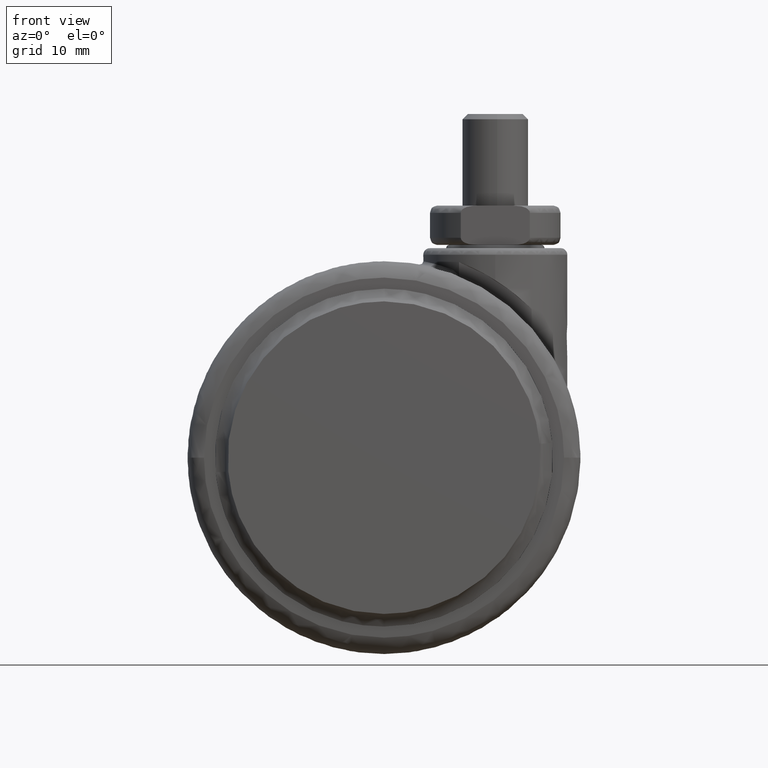
[diagram: clean part render]
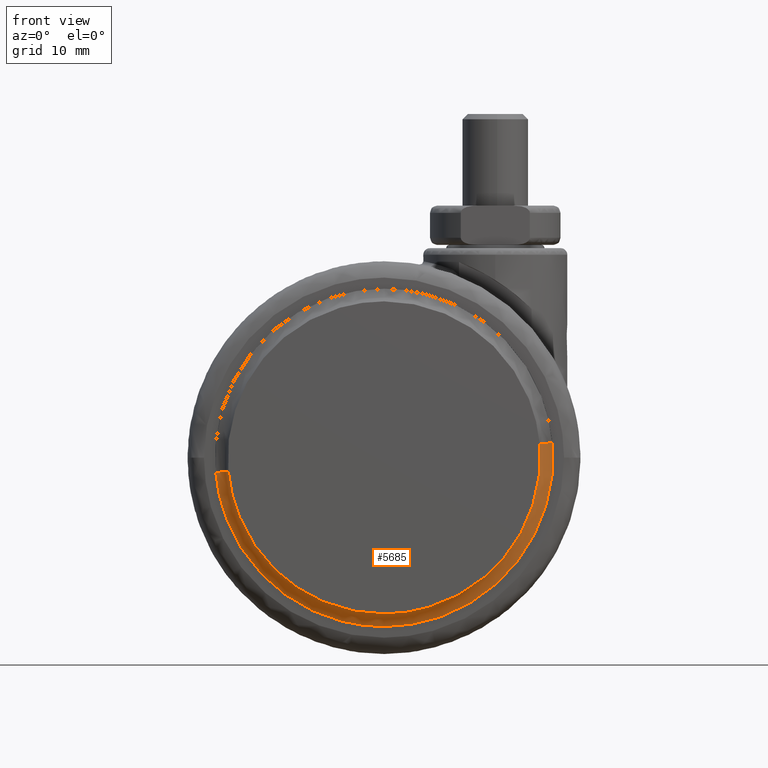
[diagram: same view with one face highlighted and labeled with its STEP entity id]
A machine part, front view. The second image highlights one B-rep face of the part: STEP entity #5685.
In plain terms, the highlighted face is a freeform B-spline surface patch.
Its self-contained STEP definition (entity closure, byte-faithful):
#5429=CARTESIAN_POINT('',(-23.783222111210389,-22.799999999489390,-2.097494252924088));
#5430=VERTEX_POINT('',#5429);
#5448=CARTESIAN_POINT('',(0.0,-22.800000000000001,-23.875534258511252));
#5449=VERTEX_POINT('',#5448);
#5450=CARTESIAN_POINT('',(0.0,-22.800000000000001,-23.875534258511252));
#5451=CARTESIAN_POINT('',(-21.862569243453571,-22.799999999744692,-23.875534258513881));
#5452=CARTESIAN_POINT('',(-23.783222111210392,-22.799999999489398,-2.097494252924089));
#5460=(BOUNDED_CURVE()B_SPLINE_CURVE(2,(#5450,#5451,#5452),.UNSPECIFIED.,.F.,.U.)B_SPLINE_CURVE_WITH_KNOTS((3,3),(0.500000000000000,0.734718454855897),.UNSPECIFIED.)CURVE()GEOMETRIC_REPRESENTATION_ITEM()RATIONAL_B_SPLINE_CURVE((1.0,0.725010224969346,0.966381850709618))REPRESENTATION_ITEM(''));
#5461=EDGE_CURVE('',#5449,#5430,#5460,.T.);
#5463=CARTESIAN_POINT('',(23.783222111210389,-22.799999999489390,2.097494252924087));
#5464=VERTEX_POINT('',#5463);
#5465=CARTESIAN_POINT('',(23.783222111210392,-22.799999999489398,2.097494252924088));
#5466=CARTESIAN_POINT('',(23.875534258569946,-22.799999999499676,1.050778486631239));
#5467=CARTESIAN_POINT('',(23.875534258568631,-22.799999999510920,5.060183E-012));
#5468=CARTESIAN_POINT('',(23.875534258538682,-22.799999999766211,-23.875534258508829));
#5469=CARTESIAN_POINT('',(0.0,-22.800000000000001,-23.875534258511252));
#5477=(BOUNDED_CURVE()B_SPLINE_CURVE(2,(#5465,#5466,#5467,#5468,#5469),.UNSPECIFIED.,.F.,.U.)B_SPLINE_CURVE_WITH_KNOTS((3,2,3),(0.234718454855897,0.250000000000000,0.500000000000000),.UNSPECIFIED.)CURVE()GEOMETRIC_REPRESENTATION_ITEM()RATIONAL_B_SPLINE_CURVE((0.966381850709618,0.982096556217202,1.0,0.707106781186547,1.0))REPRESENTATION_ITEM(''));
#5478=EDGE_CURVE('',#5464,#5449,#5477,.T.);
#5525=CARTESIAN_POINT('',(-25.704905294196660,-21.002230012307500,-2.266971685981109));
#5526=VERTEX_POINT('',#5525);
#5544=CARTESIAN_POINT('',(-25.704905294196664,-21.002230012307500,-2.266971685981109));
#5545=CARTESIAN_POINT('',(-23.984676776129255,-21.083073021873290,-2.115260979418126));
#5546=CARTESIAN_POINT('',(-23.783222111210382,-22.799999999489394,-2.097494252924089));
#5554=(BOUNDED_CURVE()B_SPLINE_CURVE(2,(#5544,#5545,#5546),.UNSPECIFIED.,.F.,.U.)B_SPLINE_CURVE_WITH_KNOTS((3,3),(-1.703172706421857,-0.291449015805452),.UNSPECIFIED.)CURVE()GEOMETRIC_REPRESENTATION_ITEM()RATIONAL_B_SPLINE_CURVE((0.892442377405242,0.681244095356117,0.894057745885278))REPRESENTATION_ITEM(''));
#5555=EDGE_CURVE('',#5526,#5430,#5554,.T.);
#5559=CARTESIAN_POINT('',(25.704905294196660,-21.002230012307500,2.266971685981101));
#5560=VERTEX_POINT('',#5559);
#5561=CARTESIAN_POINT('',(25.704905294196656,-21.002230012307500,2.266971685981101));
#5562=CARTESIAN_POINT('',(23.984676776129259,-21.083073021873311,2.115260979418123));
#5563=CARTESIAN_POINT('',(23.783222111210382,-22.799999999489394,2.097494252924087));
#5571=(BOUNDED_CURVE()B_SPLINE_CURVE(2,(#5561,#5562,#5563),.UNSPECIFIED.,.F.,.U.)B_SPLINE_CURVE_WITH_KNOTS((3,3),(-1.703172706421852,-0.291449015805456),.UNSPECIFIED.)CURVE()GEOMETRIC_REPRESENTATION_ITEM()RATIONAL_B_SPLINE_CURVE((0.892442377405241,0.681244095356118,0.894057745885277))REPRESENTATION_ITEM(''));
#5572=EDGE_CURVE('',#5560,#5464,#5571,.T.);
#5605=CARTESIAN_POINT('',(25.770919224174254,-21.000298617983265,3.000662758505903));
#5606=CARTESIAN_POINT('',(25.802582218380351,-21.000298617983265,2.641640070902790));
#5607=CARTESIAN_POINT('',(28.113027338513429,-21.000298617983258,-23.556204996762741));
#5608=CARTESIAN_POINT('',(2.278411170875347,-21.000298617983258,-25.834616167638092));
#5609=CARTESIAN_POINT('',(-23.556204996762741,-21.000298617983258,-28.113027338513429));
#5610=CARTESIAN_POINT('',(-25.866650116892114,-21.000298617983265,-1.915182270890005));
#5611=CARTESIAN_POINT('',(-25.898313111094588,-21.000298617983258,-1.556159583328020));
#5612=CARTESIAN_POINT('',(23.817966024781878,-20.966653986003571,2.773268699196423));
#5613=CARTESIAN_POINT('',(23.847229556815165,-20.966653986003585,2.441453209765396));
#5614=CARTESIAN_POINT('',(25.982586192516081,-20.966653986003578,-21.771085672388139));
#5615=CARTESIAN_POINT('',(2.105750260063970,-20.966653986003585,-23.876835932452110));
#5616=CARTESIAN_POINT('',(-21.771085672388139,-20.966653986003578,-25.982586192516081));
#5617=CARTESIAN_POINT('',(-23.906442308085616,-20.966653986003582,-1.770047310401454));
#5618=CARTESIAN_POINT('',(-23.935705840115549,-20.966653986003575,-1.438231821008438));
#5619=CARTESIAN_POINT('',(23.713570901116626,-22.929511528702129,2.761113348546062));
#5620=CARTESIAN_POINT('',(23.742706169886681,-22.929511528702136,2.430752220038095));
#5621=CARTESIAN_POINT('',(25.868703449720620,-22.929511528702140,-21.675662109405003));
#5622=CARTESIAN_POINT('',(2.096520670157812,-22.929511528702136,-23.772182779562819));
#5623=CARTESIAN_POINT('',(-21.675662109404986,-22.929511528702140,-25.868703449720620));
#5624=CARTESIAN_POINT('',(-23.801659389235532,-22.929511528702140,-1.762289120316269));
#5625=CARTESIAN_POINT('',(-23.830794658002265,-22.929511528702140,-1.431927991846147));
#5633=(BOUNDED_SURFACE()B_SPLINE_SURFACE(2,2,((#5605,#5612,#5619),(#5606,#5613,#5620),(#5607,#5614,#5621),(#5608,#5615,#5622),(#5609,#5616,#5623),(#5610,#5617,#5624),(#5611,#5618,#5625)),.UNSPECIFIED.,.F.,.F.,.U.)B_SPLINE_SURFACE_WITH_KNOTS((3,1,2,1,3),(3,3),(0.0,0.859406673807440,43.829740360443992,86.800074047080543,87.659480720787798),(0.0,3.291618988373867),.UNSPECIFIED.)GEOMETRIC_REPRESENTATION_ITEM()RATIONAL_B_SPLINE_SURFACE(((0.925314182526342,0.666727536463893,0.927111751548754),(0.919956585690493,0.662867164055054,0.921743746734416),(0.646719147085479,0.465988171221028,0.647975501226541),(0.914598988854644,0.659006791646214,0.916375741920079),(0.646719147085479,0.465988171221028,0.647975501226541),(0.919956585689869,0.662867164054603,0.921743746733790),(0.925314182525093,0.666727536462993,0.927111751547502)))REPRESENTATION_ITEM('')SURFACE());
#5634=CARTESIAN_POINT('',(0.0,-21.002230012286851,-25.804676258992949));
#5635=VERTEX_POINT('',#5634);
#5636=CARTESIAN_POINT('',(-6.417362027172166,-21.002230012288340,-24.993974902826331));
#5637=VERTEX_POINT('',#5636);
#5638=CARTESIAN_POINT('',(0.0,-21.002230012286851,-25.804676258992949));
#5639=CARTESIAN_POINT('',(-3.259888712804897,-21.002230012287452,-25.804676258996068));
#5640=CARTESIAN_POINT('',(-6.417362027172166,-21.002230012288340,-24.993974902826327));
#5648=(BOUNDED_CURVE()B_SPLINE_CURVE(2,(#5638,#5639,#5640),.UNSPECIFIED.,.F.,.U.)B_SPLINE_CURVE_WITH_KNOTS((3,3),(0.500000000000000,0.542443238243576),.UNSPECIFIED.)CURVE()GEOMETRIC_REPRESENTATION_ITEM()RATIONAL_B_SPLINE_CURVE((1.0,0.950274653335891,0.917433344553455))REPRESENTATION_ITEM(''));
#5649=EDGE_CURVE('',#5635,#5637,#5648,.T.);
#5650=ORIENTED_EDGE('',*,*,#5649,.F.);
#5651=CARTESIAN_POINT('',(25.704905294196656,-21.002230012307503,2.266971685981102));
#5652=CARTESIAN_POINT('',(25.804676258562221,-21.002230012307077,1.135681336940851));
#5653=CARTESIAN_POINT('',(25.804676258571899,-21.002230012306629,-3.713509E-011));
#5654=CARTESIAN_POINT('',(25.804676258791684,-21.002230012296302,-25.804676259010705));
#5655=CARTESIAN_POINT('',(0.0,-21.002230012286851,-25.804676258992949));
#5663=(BOUNDED_CURVE()B_SPLINE_CURVE(2,(#5651,#5652,#5653,#5654,#5655),.UNSPECIFIED.,.F.,.U.)B_SPLINE_CURVE_WITH_KNOTS((3,2,3),(0.234718454855625,0.250000000000000,0.500000000000000),.UNSPECIFIED.)CURVE()GEOMETRIC_REPRESENTATION_ITEM()RATIONAL_B_SPLINE_CURVE((0.966381850709060,0.982096556216884,1.0,0.707106781186547,1.0))REPRESENTATION_ITEM(''));
#5664=EDGE_CURVE('',#5560,#5635,#5663,.T.);
#5665=ORIENTED_EDGE('',*,*,#5664,.F.);
#5666=ORIENTED_EDGE('',*,*,#5572,.T.);
#5667=ORIENTED_EDGE('',*,*,#5478,.T.);
#5668=ORIENTED_EDGE('',*,*,#5461,.T.);
#5669=ORIENTED_EDGE('',*,*,#5555,.F.);
#5670=CARTESIAN_POINT('',(-6.417362027172166,-21.002230012288340,-24.993974902826327));
#5671=CARTESIAN_POINT('',(-24.100987604364537,-21.002230012298700,-20.453591561398348));
#5672=CARTESIAN_POINT('',(-25.704905294196664,-21.002230012307496,-2.266971685981109));
#5680=(BOUNDED_CURVE()B_SPLINE_CURVE(2,(#5670,#5671,#5672),.UNSPECIFIED.,.F.,.U.)B_SPLINE_CURVE_WITH_KNOTS((3,3),(0.542443238243576,0.734718454855625),.UNSPECIFIED.)CURVE()GEOMETRIC_REPRESENTATION_ITEM()RATIONAL_B_SPLINE_CURVE((0.917433344553455,0.768656530594835,0.966381850709060))REPRESENTATION_ITEM(''));
#5681=EDGE_CURVE('',#5637,#5526,#5680,.T.);
#5682=ORIENTED_EDGE('',*,*,#5681,.F.);
#5683=EDGE_LOOP('',(#5650,#5665,#5666,#5667,#5668,#5669,#5682));
#5684=FACE_OUTER_BOUND('',#5683,.T.);
#5685=ADVANCED_FACE('',(#5684),#5633,.F.);